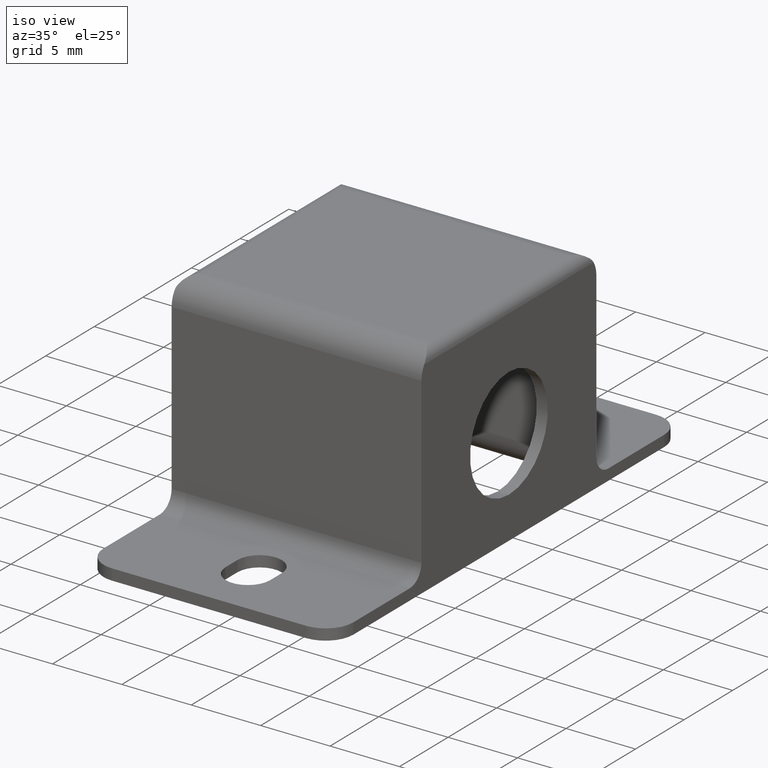
[diagram: clean part render]
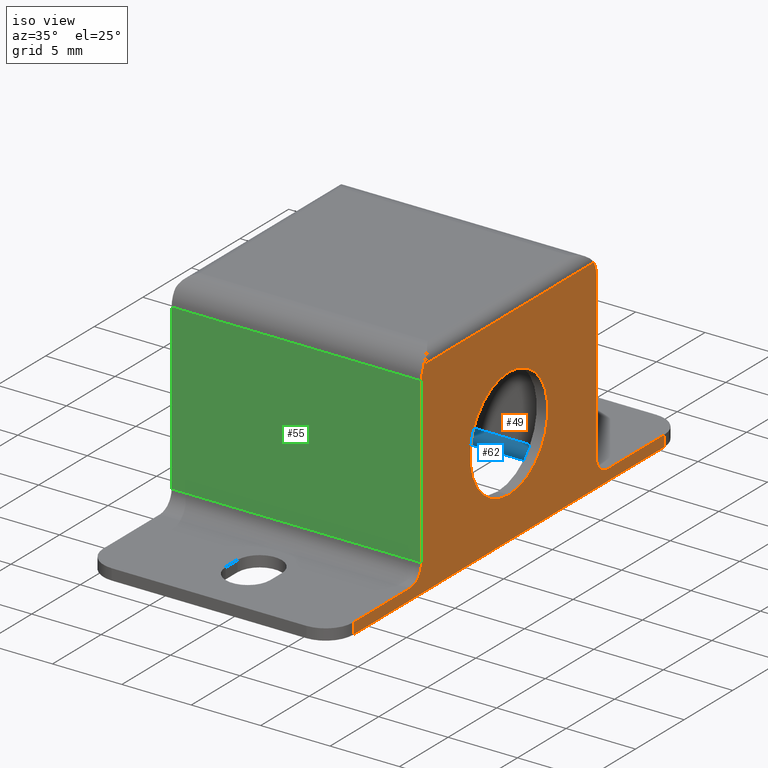
[diagram: same view with three faces highlighted in distinct colors, each labeled with its STEP entity id]
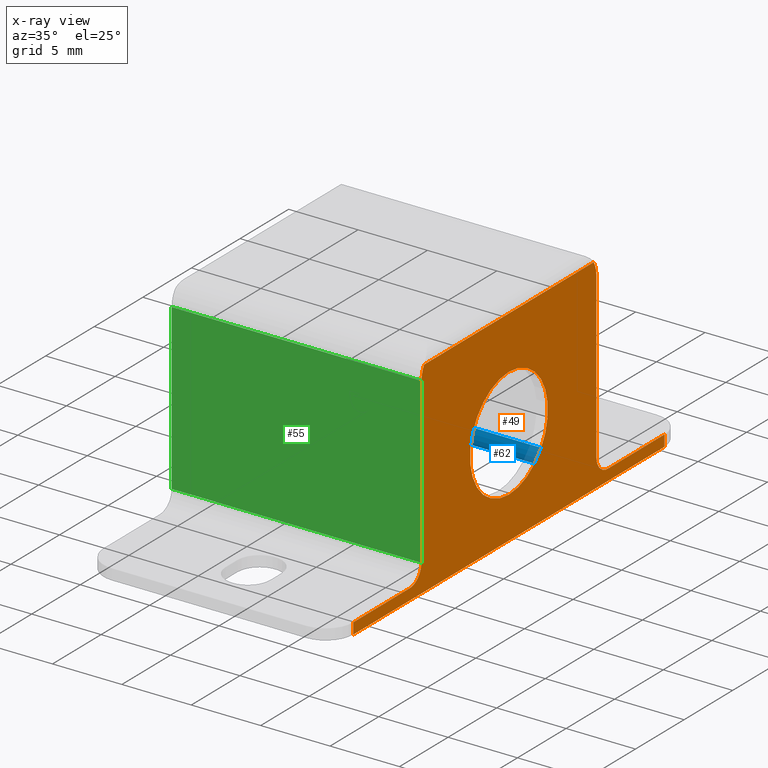
[diagram: x-ray of the same camera — body ghosted, the three highlighted faces saturated]
A machine part, iso view with three faces highlighted in distinct colors.
The next image is the same camera in x-ray (body ghosted, the three faces saturated) — at least one of them is partly hidden behind the body in this view.
Their STEP definitions:

[orange] entity #49 — the highlighted planar face has unit normal (1, 0, -0).
#49=ADVANCED_FACE('',(#170,#171),#169,.T.);
#169=PLANE('',#524);
#170=FACE_OUTER_BOUND('',#525,.T.);
#171=FACE_BOUND('',#526,.T.);
#521=CARTESIAN_POINT('',(1.80000000000E+01,-5.80000000000E+00,1.54800000000E+01));
#522=DIRECTION('',(1.00000000000E+00,0.00000000000E+00,-0.00000000000E+00));
#523=DIRECTION('',(-0.00000000000E+00,0.00000000000E+00,-1.00000000000E+00));
#524=AXIS2_PLACEMENT_3D('',#521,#522,#523);
#525=EDGE_LOOP('',(#726,#727,#728,#729,#730,#731,#732,#733,#734,#735,#736,#737));
#526=EDGE_LOOP('',(#738,#739));
#726=ORIENTED_EDGE('',*,*,#898,.F.);
#727=ORIENTED_EDGE('',*,*,#932,.T.);
#728=ORIENTED_EDGE('',*,*,#906,.F.);
#729=ORIENTED_EDGE('',*,*,#933,.F.);
#730=ORIENTED_EDGE('',*,*,#934,.T.);
#731=ORIENTED_EDGE('',*,*,#935,.F.);
#732=ORIENTED_EDGE('',*,*,#918,.T.);
#733=ORIENTED_EDGE('',*,*,#936,.F.);
#734=ORIENTED_EDGE('',*,*,#914,.T.);
#735=ORIENTED_EDGE('',*,*,#937,.F.);
#736=ORIENTED_EDGE('',*,*,#938,.T.);
#737=ORIENTED_EDGE('',*,*,#939,.F.);
#738=ORIENTED_EDGE('',*,*,#940,.T.);
#739=ORIENTED_EDGE('',*,*,#941,.T.);
#898=EDGE_CURVE('',#1024,#1031,#1032,.T.);
#906=EDGE_CURVE('',#1078,#1085,#1086,.T.);
#914=EDGE_CURVE('',#1140,#1132,#1141,.T.);
#918=EDGE_CURVE('',#1168,#1160,#1169,.T.);
#932=EDGE_CURVE('',#1024,#1085,#1262,.T.);
#933=EDGE_CURVE('',#1268,#1078,#1269,.T.);
#934=EDGE_CURVE('',#1268,#1275,#1276,.T.);
#935=EDGE_CURVE('',#1168,#1275,#1282,.T.);
#936=EDGE_CURVE('',#1140,#1160,#1288,.T.);
#937=EDGE_CURVE('',#1294,#1132,#1295,.T.);
#938=EDGE_CURVE('',#1294,#1301,#1302,.T.);
#939=EDGE_CURVE('',#1031,#1301,#1308,.T.);
#940=EDGE_CURVE('',#1314,#1315,#1316,.T.);
#941=EDGE_CURVE('',#1315,#1314,#1322,.T.);
#1024=VERTEX_POINT('',#1743);
#1031=VERTEX_POINT('',#1754);
#1032=CIRCLE('',#1758,1.75000000000E+00);
#1078=VERTEX_POINT('',#1789);
#1085=VERTEX_POINT('',#1793);
#1086=CIRCLE('',#1797,1.75000000000E+00);
#1132=VERTEX_POINT('',#1829);
#1140=VERTEX_POINT('',#1835);
#1141=LINE('',#1836,#1837);
#1160=VERTEX_POINT('',#1847);
#1168=VERTEX_POINT('',#1853);
#1169=LINE('',#1854,#1855);
#1262=LINE('',#1910,#1911);
#1268=VERTEX_POINT('',#1913);
#1269=LINE('',#1914,#1915);
#1275=VERTEX_POINT('',#1917);
#1276=CIRCLE('',#1921,1.20000000000E+00);
#1282=LINE('',#1922,#1923);
#1288=LINE('',#1925,#1926);
#1294=VERTEX_POINT('',#1928);
#1295=LINE('',#1929,#1930);
#1301=VERTEX_POINT('',#1932);
#1302=CIRCLE('',#1936,1.20000000000E+00);
#1308=LINE('',#1937,#1938);
#1314=VERTEX_POINT('',#1940);
#1315=VERTEX_POINT('',#1941);
#1316=CIRCLE('',#1945,4.00000000000E+00);
#1322=CIRCLE('',#1949,4.00000000000E+00);
#1743=CARTESIAN_POINT('',(1.80000000000E+01,2.21196938457E+01,1.40000000000E+01));
#1754=CARTESIAN_POINT('',(1.80000000000E+01,2.24000000000E+01,1.30500000000E+01));
#1755=CARTESIAN_POINT('',(1.80000000000E+01,2.06500000000E+01,1.30500000000E+01));
#1756=DIRECTION('',(-1.00000000000E+00,-0.00000000000E+00,0.00000000000E+00));
#1757=DIRECTION('',(0.00000000000E+00,-0.00000000000E+00,1.00000000000E+00));
#1758=AXIS2_PLACEMENT_3D('',#1755,#1756,#1757);
#1789=CARTESIAN_POINT('',(1.80000000000E+01,4.40000000000E+00,1.30500000000E+01));
#1793=CARTESIAN_POINT('',(1.80000000000E+01,4.68030615433E+00,1.40000000000E+01));
#1794=CARTESIAN_POINT('',(1.80000000000E+01,6.15000000000E+00,1.30500000000E+01));
#1795=DIRECTION('',(-1.00000000000E+00,-0.00000000000E+00,0.00000000000E+00));
#1796=DIRECTION('',(0.00000000000E+00,-0.00000000000E+00,1.00000000000E+00));
#1797=AXIS2_PLACEMENT_3D('',#1794,#1795,#1796);
#1829=CARTESIAN_POINT('',(1.80000000000E+01,2.94000000000E+01,0.00000000000E+00));
#1835=CARTESIAN_POINT('',(1.80000000000E+01,2.94000000000E+01,-8.00000000000E-01));
#1836=CARTESIAN_POINT('',(1.80000000000E+01,2.94000000000E+01,-8.00000000000E-01));
#1837=VECTOR('',#1838,8.00000000000E-01);
#1838=DIRECTION('',(0.00000000000E+00,0.00000000000E+00,1.00000000000E+00));
#1847=CARTESIAN_POINT('',(1.80000000000E+01,-2.60000000000E+00,-8.00000000000E-01));
#1853=CARTESIAN_POINT('',(1.80000000000E+01,-2.60000000000E+00,0.00000000000E+00));
#1854=CARTESIAN_POINT('',(1.80000000000E+01,-2.60000000000E+00,0.00000000000E+00));
#1855=VECTOR('',#1856,8.00000000000E-01);
#1856=DIRECTION('',(0.00000000000E+00,0.00000000000E+00,-1.00000000000E+00));
#1910=CARTESIAN_POINT('',(1.80000000000E+01,2.21196938457E+01,1.40000000000E+01));
#1911=VECTOR('',#1912,1.74393876913E+01);
#1912=DIRECTION('',(0.00000000000E+00,-1.00000000000E+00,-4.84237208552E-13));
#1913=CARTESIAN_POINT('',(1.80000000000E+01,4.40000000000E+00,1.20000000000E+00));
#1914=CARTESIAN_POINT('',(1.80000000000E+01,4.40000000000E+00,1.20000000000E+00));
#1915=VECTOR('',#1916,1.18500000000E+01);
#1916=DIRECTION('',(0.00000000000E+00,0.00000000000E+00,1.00000000000E+00));
#1917=CARTESIAN_POINT('',(1.80000000000E+01,3.20000000000E+00,0.00000000000E+00));
#1918=CARTESIAN_POINT('',(1.80000000000E+01,3.20000000000E+00,1.20000000000E+00));
#1919=DIRECTION('',(-1.00000000000E+00,-0.00000000000E+00,0.00000000000E+00));
#1920=DIRECTION('',(0.00000000000E+00,-0.00000000000E+00,1.00000000000E+00));
#1921=AXIS2_PLACEMENT_3D('',#1918,#1919,#1920);
#1922=CARTESIAN_POINT('',(1.80000000000E+01,-2.60000000000E+00,0.00000000000E+00));
#1923=VECTOR('',#1924,5.80000000000E+00);
#1924=DIRECTION('',(0.00000000000E+00,1.00000000000E+00,0.00000000000E+00));
#1925=CARTESIAN_POINT('',(1.80000000000E+01,2.94000000000E+01,-8.00000000000E-01));
#1926=VECTOR('',#1927,3.20000000000E+01);
#1927=DIRECTION('',(0.00000000000E+00,-1.00000000000E+00,0.00000000000E+00));
#1928=CARTESIAN_POINT('',(1.80000000000E+01,2.36000000000E+01,-1.13242748512E-14));
#1929=CARTESIAN_POINT('',(1.80000000000E+01,2.36000000000E+01,0.00000000000E+00));
#1930=VECTOR('',#1931,5.80000000000E+00);
#1931=DIRECTION('',(0.00000000000E+00,1.00000000000E+00,0.00000000000E+00));
#1932=CARTESIAN_POINT('',(1.80000000000E+01,2.24000000000E+01,1.20000000000E+00));
#1933=CARTESIAN_POINT('',(1.80000000000E+01,2.36000000000E+01,1.20000000000E+00));
#1934=DIRECTION('',(-1.00000000000E+00,-0.00000000000E+00,0.00000000000E+00));
#1935=DIRECTION('',(0.00000000000E+00,-0.00000000000E+00,1.00000000000E+00));
#1936=AXIS2_PLACEMENT_3D('',#1933,#1934,#1935);
#1937=CARTESIAN_POINT('',(1.80000000000E+01,2.24000000000E+01,1.30500000000E+01));
#1938=VECTOR('',#1939,1.18500000000E+01);
#1939=DIRECTION('',(0.00000000000E+00,0.00000000000E+00,-1.00000000000E+00));
#1940=CARTESIAN_POINT('',(1.80000000000E+01,1.34000000000E+01,2.20000000000E+00));
#1941=CARTESIAN_POINT('',(1.80000000000E+01,1.34000000000E+01,1.02000000000E+01));
#1942=CARTESIAN_POINT('',(1.80000000000E+01,1.34000000000E+01,6.20000000000E+00));
#1943=DIRECTION('',(-1.00000000000E+00,-0.00000000000E+00,0.00000000000E+00));
#1944=DIRECTION('',(0.00000000000E+00,-1.22460635382E-16,-1.00000000000E+00));
#1945=AXIS2_PLACEMENT_3D('',#1942,#1943,#1944);
#1946=CARTESIAN_POINT('',(1.80000000000E+01,1.34000000000E+01,6.20000000000E+00));
#1947=DIRECTION('',(-1.00000000000E+00,-0.00000000000E+00,0.00000000000E+00));
#1948=DIRECTION('',(0.00000000000E+00,-1.22460635382E-16,-1.00000000000E+00));
#1949=AXIS2_PLACEMENT_3D('',#1946,#1947,#1948);

[blue] entity #62 — the highlighted cylindrical surface (edge-blend (fillet) strip) has radius 2 mm, axis along (1, -0, -0).
#62=ADVANCED_FACE('',(#307),#306,.T.);
#306=CYLINDRICAL_SURFACE('',#596,2.00000000000E+00);
#307=FACE_OUTER_BOUND('',#597,.T.);
#593=CARTESIAN_POINT('',(1.00000000000E+03,2.36000000000E+01,1.20000000000E+00));
#594=DIRECTION('',(1.00000000000E+00,-0.00000000000E+00,-0.00000000000E+00));
#595=DIRECTION('',(-0.00000000000E+00,-0.00000000000E+00,-1.00000000000E+00));
#596=AXIS2_PLACEMENT_3D('',#593,#594,#595);
#597=EDGE_LOOP('',(#826,#827,#828,#829));
#826=ORIENTED_EDGE('',*,*,#970,.F.);
#827=ORIENTED_EDGE('',*,*,#955,.F.);
#828=ORIENTED_EDGE('',*,*,#983,.T.);
#829=ORIENTED_EDGE('',*,*,#986,.T.);
#955=EDGE_CURVE('',#1410,#1417,#1418,.T.);
#970=EDGE_CURVE('',#1417,#1516,#1517,.T.);
#983=EDGE_CURVE('',#1410,#1599,#1606,.T.);
#986=EDGE_CURVE('',#1599,#1516,#1626,.T.);
#1410=VERTEX_POINT('',#2000);
#1417=VERTEX_POINT('',#2004);
#1418=LINE('',#2005,#2006);
#1516=VERTEX_POINT('',#2062);
#1517=CIRCLE('',#2066,2.00000000000E+00);
#1599=VERTEX_POINT('',#2116);
#1606=CIRCLE('',#2123,2.00000000000E+00);
#1626=LINE('',#2134,#2135);
#2000=CARTESIAN_POINT('',(1.72000000000E+01,2.36000000000E+01,-8.00000000000E-01));
#2004=CARTESIAN_POINT('',(8.00000000000E-01,2.36000000000E+01,-8.00000000000E-01));
#2005=CARTESIAN_POINT('',(1.72000000000E+01,2.36000000000E+01,-8.00000000000E-01));
#2006=VECTOR('',#2007,1.64000000000E+01);
#2007=DIRECTION('',(-1.00000000000E+00,0.00000000000E+00,0.00000000000E+00));
#2062=CARTESIAN_POINT('',(8.00000000000E-01,2.16000000000E+01,1.20000000000E+00));
#2063=CARTESIAN_POINT('',(8.00000000000E-01,2.36000000000E+01,1.20000000000E+00));
#2064=DIRECTION('',(-1.00000000000E+00,-0.00000000000E+00,0.00000000000E+00));
#2065=DIRECTION('',(0.00000000000E+00,-0.00000000000E+00,1.00000000000E+00));
#2066=AXIS2_PLACEMENT_3D('',#2063,#2064,#2065);
#2116=CARTESIAN_POINT('',(1.72000000000E+01,2.16000000000E+01,1.20000000000E+00));
#2120=CARTESIAN_POINT('',(1.72000000000E+01,2.36000000000E+01,1.20000000000E+00));
#2121=DIRECTION('',(-1.00000000000E+00,-0.00000000000E+00,0.00000000000E+00));
#2122=DIRECTION('',(0.00000000000E+00,-0.00000000000E+00,1.00000000000E+00));
#2123=AXIS2_PLACEMENT_3D('',#2120,#2121,#2122);
#2134=CARTESIAN_POINT('',(1.72000000000E+01,2.16000000000E+01,1.20000000000E+00));
#2135=VECTOR('',#2136,1.64000000000E+01);
#2136=DIRECTION('',(-1.00000000000E+00,0.00000000000E+00,0.00000000000E+00));

[green] entity #55 — the highlighted planar face has unit normal (0, -1, 0).
#55=ADVANCED_FACE('',(#235),#234,.T.);
#234=PLANE('',#559);
#235=FACE_OUTER_BOUND('',#560,.T.);
#556=CARTESIAN_POINT('',(-1.80000000000E+00,4.40000000000E+00,1.42350000000E+01));
#557=DIRECTION('',(0.00000000000E+00,-1.00000000000E+00,0.00000000000E+00));
#558=DIRECTION('',(0.00000000000E+00,0.00000000000E+00,-1.00000000000E+00));
#559=AXIS2_PLACEMENT_3D('',#556,#557,#558);
#560=EDGE_LOOP('',(#782,#783,#784,#785));
#782=ORIENTED_EDGE('',*,*,#931,.F.);
#783=ORIENTED_EDGE('',*,*,#963,.F.);
#784=ORIENTED_EDGE('',*,*,#933,.T.);
#785=ORIENTED_EDGE('',*,*,#905,.T.);
#905=EDGE_CURVE('',#1078,#1071,#1079,.T.);
#931=EDGE_CURVE('',#1249,#1071,#1256,.T.);
#933=EDGE_CURVE('',#1268,#1078,#1269,.T.);
#963=EDGE_CURVE('',#1268,#1249,#1470,.T.);
#1071=VERTEX_POINT('',#1784);
#1078=VERTEX_POINT('',#1789);
#1079=LINE('',#1790,#1791);
#1249=VERTEX_POINT('',#1902);
#1256=LINE('',#1907,#1908);
#1268=VERTEX_POINT('',#1913);
#1269=LINE('',#1914,#1915);
#1470=LINE('',#2035,#2036);
#1784=CARTESIAN_POINT('',(0.00000000000E+00,4.40000000000E+00,1.30500000000E+01));
#1789=CARTESIAN_POINT('',(1.80000000000E+01,4.40000000000E+00,1.30500000000E+01));
#1790=CARTESIAN_POINT('',(1.80000000000E+01,4.40000000000E+00,1.30500000000E+01));
#1791=VECTOR('',#1792,1.80000000000E+01);
#1792=DIRECTION('',(-1.00000000000E+00,0.00000000000E+00,0.00000000000E+00));
#1902=CARTESIAN_POINT('',(0.00000000000E+00,4.40000000000E+00,1.20000000000E+00));
#1907=CARTESIAN_POINT('',(0.00000000000E+00,4.40000000000E+00,1.20000000000E+00));
#1908=VECTOR('',#1909,1.18500000000E+01);
#1909=DIRECTION('',(0.00000000000E+00,0.00000000000E+00,1.00000000000E+00));
#1913=CARTESIAN_POINT('',(1.80000000000E+01,4.40000000000E+00,1.20000000000E+00));
#1914=CARTESIAN_POINT('',(1.80000000000E+01,4.40000000000E+00,1.20000000000E+00));
#1915=VECTOR('',#1916,1.18500000000E+01);
#1916=DIRECTION('',(0.00000000000E+00,0.00000000000E+00,1.00000000000E+00));
#2035=CARTESIAN_POINT('',(1.80000000000E+01,4.40000000000E+00,1.20000000000E+00));
#2036=VECTOR('',#2037,1.80000000000E+01);
#2037=DIRECTION('',(-1.00000000000E+00,0.00000000000E+00,0.00000000000E+00));